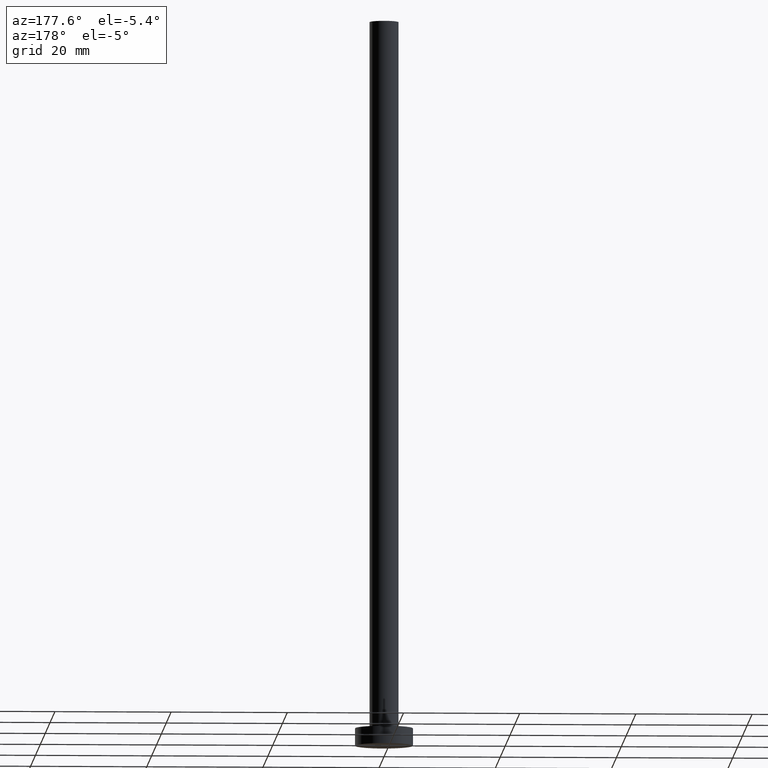
[diagram: clean part render]
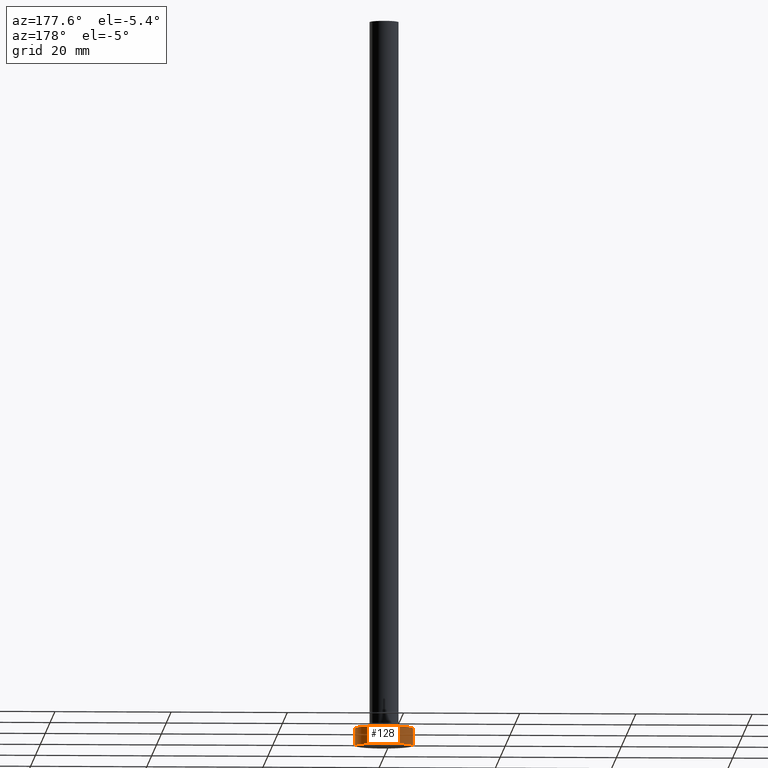
[diagram: same view with one face highlighted and labeled with its STEP entity id]
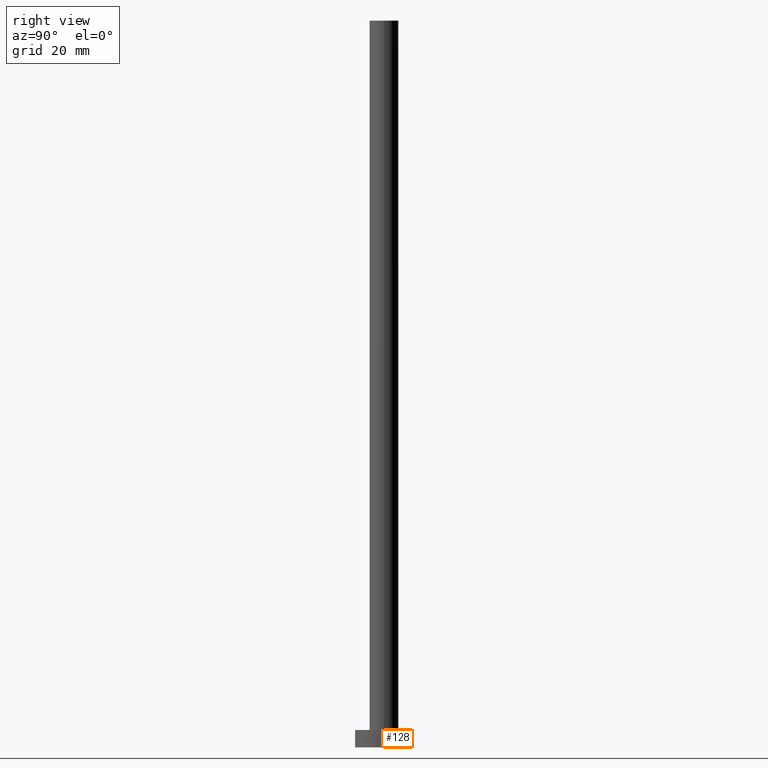
[diagram: same view with one face highlighted and labeled with its STEP entity id]
A machine part, auxiliary view. The second image highlights one B-rep face of the part: STEP entity #128.
A second angle (right view) of the same face is appended — the face is thin or edge-on in the first view.
In plain terms, the highlighted cylindrical surface (edge-blend (fillet) strip) has radius 5 mm, axis along (-0, -0, -1).
Its self-contained STEP definition (entity closure, byte-faithful):
#1 = ORIENTED_EDGE ( 'NONE', *, *, #114, .F. ) ;
#14 = VERTEX_POINT ( 'NONE', #210 ) ;
#19 = LINE ( 'NONE', #34, #159 ) ;
#21 = CARTESIAN_POINT ( 'NONE',  ( 5.000000000000000000, 6.123233995736766282E-16, 3.000000000000000000 ) ) ;
#34 = CARTESIAN_POINT ( 'NONE',  ( -5.000000000000000000, 0.000000000000000000, 3.000000000000000000 ) ) ;
#37 = DIRECTION ( 'NONE',  ( 1.000000000000000000, 0.000000000000000000, 0.000000000000000000 ) ) ;
#45 = DIRECTION ( 'NONE',  ( 1.000000000000000000, 0.000000000000000000, 0.000000000000000000 ) ) ;
#47 = AXIS2_PLACEMENT_3D ( 'NONE', #183, #60, #37 ) ;
#60 = DIRECTION ( 'NONE',  ( 0.000000000000000000, 0.000000000000000000, 1.000000000000000000 ) ) ;
#66 = CARTESIAN_POINT ( 'NONE',  ( -5.000000000000000000, 0.000000000000000000, 3.000000000000000000 ) ) ;
#88 = EDGE_LOOP ( 'NONE', ( #197, #94, #193, #1 ) ) ;
#94 = ORIENTED_EDGE ( 'NONE', *, *, #190, .T. ) ;
#95 = DIRECTION ( 'NONE',  ( -0.000000000000000000, -0.000000000000000000, -1.000000000000000000 ) ) ;
#98 = DIRECTION ( 'NONE',  ( -1.000000000000000000, 0.000000000000000000, 0.000000000000000000 ) ) ;
#100 = CARTESIAN_POINT ( 'NONE',  ( 0.000000000000000000, 0.000000000000000000, 3.000000000000000000 ) ) ;
#106 = VECTOR ( 'NONE', #243, 1000.000000000000000 ) ;
#114 = EDGE_CURVE ( 'NONE', #232, #175, #19, .T. ) ;
#117 = CYLINDRICAL_SURFACE ( 'NONE', #187, 5.000000000000000000 ) ;
#121 = CARTESIAN_POINT ( 'NONE',  ( -5.000000000000000000, 0.000000000000000000, 0.000000000000000000 ) ) ;
#127 = CARTESIAN_POINT ( 'NONE',  ( 5.000000000000000000, 6.123233995736766282E-16, 3.000000000000000000 ) ) ;
#128 = ADVANCED_FACE ( 'NONE', ( #236 ), #117, .T. ) ;
#129 = CIRCLE ( 'NONE', #47, 5.000000000000000000 ) ;
#136 = EDGE_CURVE ( 'NONE', #14, #175, #129, .T. ) ;
#139 = DIRECTION ( 'NONE',  ( -0.000000000000000000, -0.000000000000000000, -1.000000000000000000 ) ) ;
#159 = VECTOR ( 'NONE', #139, 1000.000000000000000 ) ;
#163 = LINE ( 'NONE', #127, #106 ) ;
#175 = VERTEX_POINT ( 'NONE', #121 ) ;
#177 = VERTEX_POINT ( 'NONE', #21 ) ;
#183 = CARTESIAN_POINT ( 'NONE',  ( 0.000000000000000000, 0.000000000000000000, 0.000000000000000000 ) ) ;
#184 = EDGE_CURVE ( 'NONE', #177, #232, #205, .T. ) ;
#185 = DIRECTION ( 'NONE',  ( 0.000000000000000000, 0.000000000000000000, 1.000000000000000000 ) ) ;
#187 = AXIS2_PLACEMENT_3D ( 'NONE', #199, #95, #98 ) ;
#190 = EDGE_CURVE ( 'NONE', #177, #14, #163, .T. ) ;
#193 = ORIENTED_EDGE ( 'NONE', *, *, #136, .T. ) ;
#197 = ORIENTED_EDGE ( 'NONE', *, *, #184, .F. ) ;
#199 = CARTESIAN_POINT ( 'NONE',  ( 0.000000000000000000, 0.000000000000000000, 3.000000000000000000 ) ) ;
#205 = CIRCLE ( 'NONE', #244, 5.000000000000000000 ) ;
#210 = CARTESIAN_POINT ( 'NONE',  ( 5.000000000000000000, 6.123233995736766282E-16, 0.000000000000000000 ) ) ;
#232 = VERTEX_POINT ( 'NONE', #66 ) ;
#236 = FACE_OUTER_BOUND ( 'NONE', #88, .T. ) ;
#243 = DIRECTION ( 'NONE',  ( -0.000000000000000000, -0.000000000000000000, -1.000000000000000000 ) ) ;
#244 = AXIS2_PLACEMENT_3D ( 'NONE', #100, #185, #45 ) ;